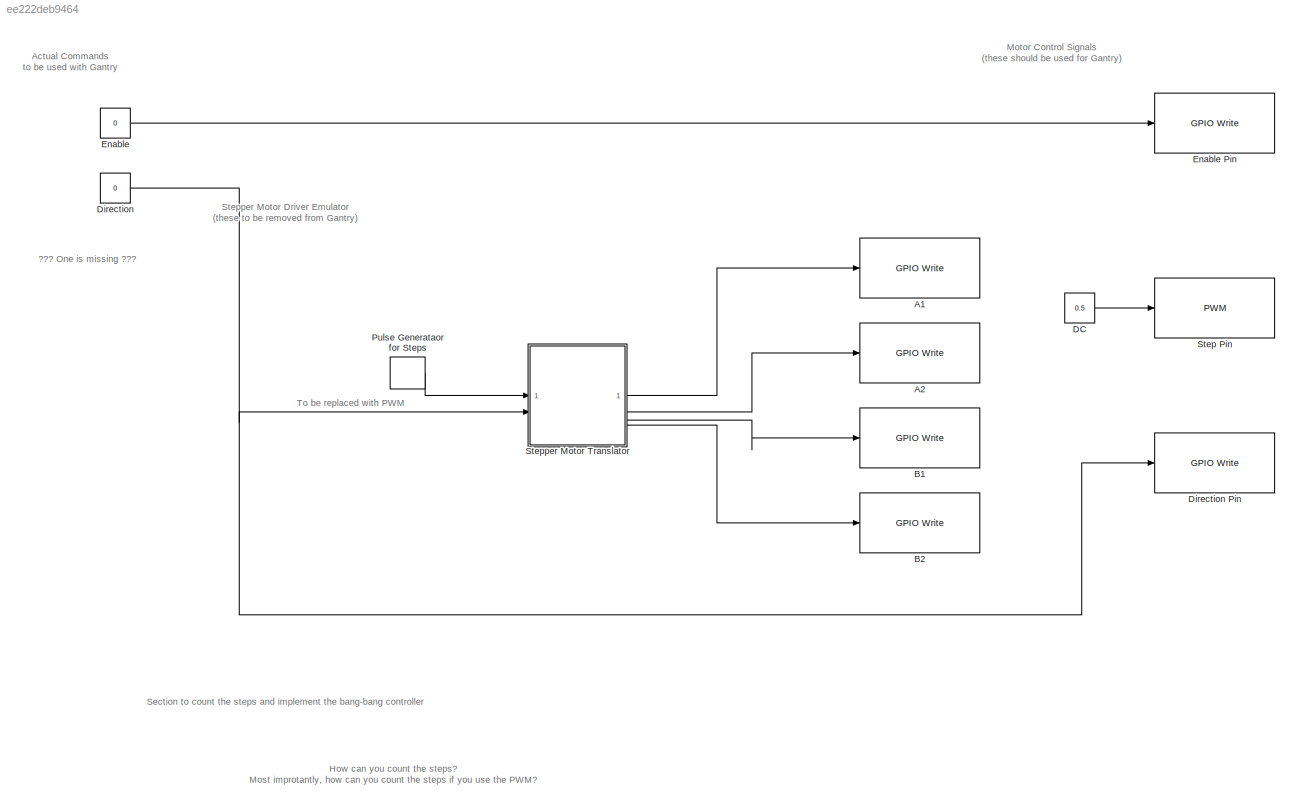
MODEL slx_ee222deb9464
KIND model
CONFIG AbsTol = auto
CONFIG EnableMultiTasking = on
CONFIG FixedStep = 0.05
CONFIG MaxStep = auto
CONFIG MinStep = auto
CONFIG RelTol = 1e-3
CONFIG SampleTimeConstraint = Unconstrained
CONFIG SolverName = FixedStepAuto
CONFIG StartTime = 0.0
CONFIG StopTime = inf
BLOCK [Reference] A1  REF=raspberrypiBasiclib/GPIO Write
  SourceBlock = raspberrypiBasiclib/GPIO Write
  SourceType = codertarget.raspi.internal.RaspiGPIOWrite
BLOCK [Reference] A2  REF=raspberrypiBasiclib/GPIO Write
  SourceBlock = raspberrypiBasiclib/GPIO Write
  SourceType = codertarget.raspi.internal.RaspiGPIOWrite
BLOCK [Reference] B1  REF=raspberrypiBasiclib/GPIO Write
  SourceBlock = raspberrypiBasiclib/GPIO Write
  SourceType = codertarget.raspi.internal.RaspiGPIOWrite
BLOCK [Reference] B2  REF=raspberrypiBasiclib/GPIO Write
  SourceBlock = raspberrypiBasiclib/GPIO Write
  SourceType = codertarget.raspi.internal.RaspiGPIOWrite
BLOCK [Constant] DC
  Commented = on
  SampleTime = -1
  Value = 0.5
BLOCK [Constant] Direction
  SampleTime = -1
  Value = 0
BLOCK [Reference] Direction Pin  REF=raspberrypiBasiclib/GPIO Write
  Commented = on
  SourceBlock = raspberrypiBasiclib/GPIO Write
  SourceType = codertarget.raspi.internal.RaspiGPIOWrite
BLOCK [Constant] Enable
  SampleTime = -1
  Value = 0
BLOCK [Reference] Enable Pin  REF=raspberrypiBasiclib/GPIO Write
  SourceBlock = raspberrypiBasiclib/GPIO Write
  SourceType = codertarget.raspi.internal.RaspiGPIOWrite
BLOCK [DiscretePulseGenerator] Pulse Generataor for Steps
  Period = 0.1
  PulseType = Time based
  PulseWidth = 50
BLOCK [Reference] Step Pin  REF=raspberrypiBasiclib/PWM
  Commented = on
  SourceBlock = raspberrypiBasiclib/PWM
  SourceType = raspi.internal.PWMBlock
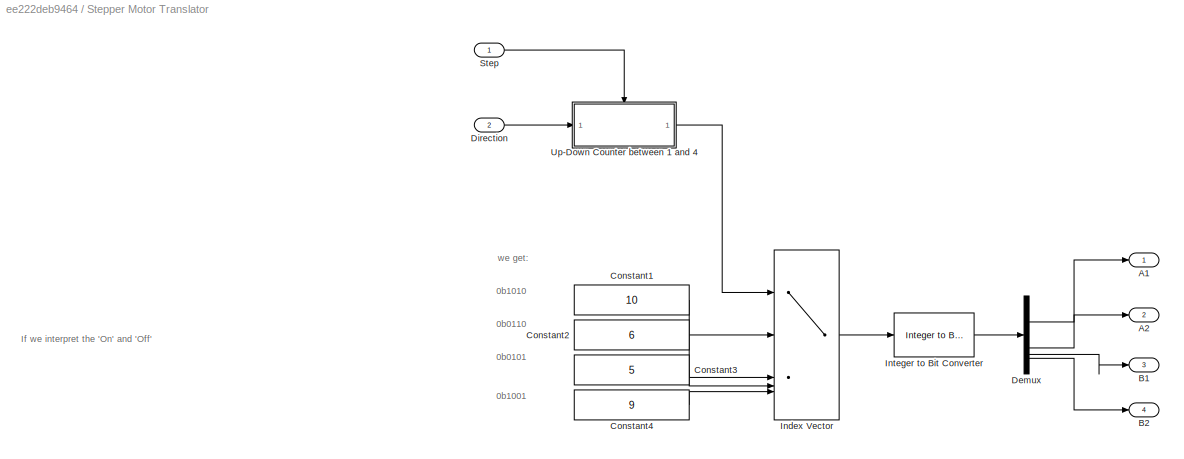
BLOCK [SubSystem] Stepper Motor Translator
BLOCK [Outport] Stepper Motor Translator/A1
BLOCK [Outport] Stepper Motor Translator/A2
  Port = 2
BLOCK [Outport] Stepper Motor Translator/B1
  Port = 3
BLOCK [Outport] Stepper Motor Translator/B2
  Port = 4
BLOCK [Constant] Stepper Motor Translator/Constant1
  OutDataTypeStr = uint8
  SampleTime = -1
  Value = 10
BLOCK [Constant] Stepper Motor Translator/Constant2
  OutDataTypeStr = uint8
  SampleTime = -1
  Value = 6
BLOCK [Constant] Stepper Motor Translator/Constant3
  OutDataTypeStr = uint8
  SampleTime = -1
  Value = 5
BLOCK [Constant] Stepper Motor Translator/Constant4
  OutDataTypeStr = uint8
  SampleTime = -1
  Value = 9
BLOCK [Demux] Stepper Motor Translator/Demux
BLOCK [Inport] Stepper Motor Translator/Direction
  Port = 2
BLOCK [MultiPortSwitch] Stepper Motor Translator/Index Vector
  InputSameDT = off
  Inputs = 4
  SaturateOnIntegerOverflow = off
BLOCK [Reference] Stepper Motor Translator/Integer to Bit Converter  REF=simulink/Logic and Bit
Operations/Integer to Bit
Converter
  SourceBlock = simulink/Logic and Bit\nOperations/Integer to Bit\nConverter
  SourceType = Integer to Bit Converter
BLOCK [Inport] Stepper Motor Translator/Step
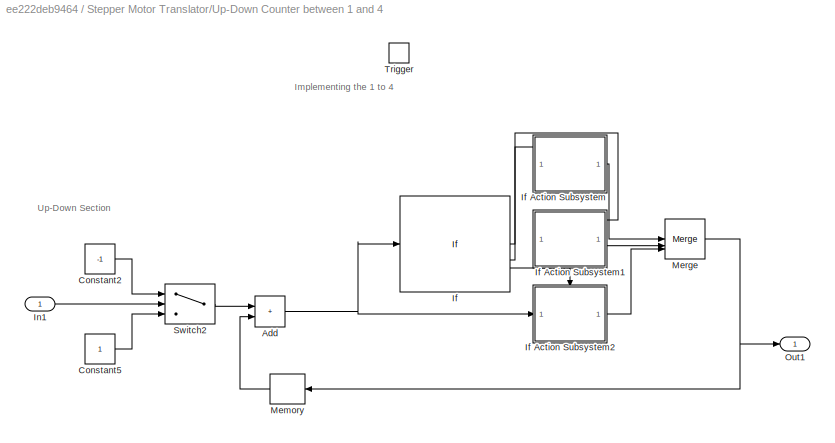
BLOCK [SubSystem] Stepper Motor Translator/Up-Down Counter between 1 and 4
  TreatAsAtomicUnit = on
BLOCK [Sum] Stepper Motor Translator/Up-Down Counter between 1 and 4/Add
  IconShape = rectangular
BLOCK [Constant] Stepper Motor Translator/Up-Down Counter between 1 and 4/Constant2
  SampleTime = -1
  Value = -1
BLOCK [Constant] Stepper Motor Translator/Up-Down Counter between 1 and 4/Constant5
  SampleTime = -1
BLOCK [If] Stepper Motor Translator/Up-Down Counter between 1 and 4/If
  ElseIfExpressions = u1<1
  IfExpression = u1 > 4
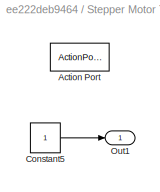
BLOCK [SubSystem] Stepper Motor Translator/Up-Down Counter between 1 and 4/If Action Subsystem
  TreatAsAtomicUnit = on
BLOCK [ActionPort] Stepper Motor Translator/Up-Down Counter between 1 and 4/If Action Subsystem/Action Port
  ActionPortLabel = if(u1 > 4)
BLOCK [Constant] Stepper Motor Translator/Up-Down Counter between 1 and 4/If Action Subsystem/Constant5
  SampleTime = -1
BLOCK [Outport] Stepper Motor Translator/Up-Down Counter between 1 and 4/If Action Subsystem/Out1
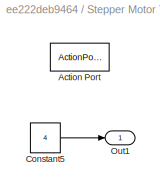
BLOCK [SubSystem] Stepper Motor Translator/Up-Down Counter between 1 and 4/If Action Subsystem1
  TreatAsAtomicUnit = on
BLOCK [ActionPort] Stepper Motor Translator/Up-Down Counter between 1 and 4/If Action Subsystem1/Action Port
  ActionPortLabel = elseif(u1<1)
BLOCK [Constant] Stepper Motor Translator/Up-Down Counter between 1 and 4/If Action Subsystem1/Constant5
  SampleTime = -1
  Value = 4
BLOCK [Outport] Stepper Motor Translator/Up-Down Counter between 1 and 4/If Action Subsystem1/Out1
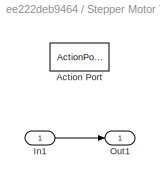
BLOCK [SubSystem] Stepper Motor Translator/Up-Down Counter between 1 and 4/If Action Subsystem2
  TreatAsAtomicUnit = on
BLOCK [ActionPort] Stepper Motor Translator/Up-Down Counter between 1 and 4/If Action Subsystem2/Action Port
  ActionPortLabel = else
BLOCK [Inport] Stepper Motor Translator/Up-Down Counter between 1 and 4/If Action Subsystem2/In1
BLOCK [Outport] Stepper Motor Translator/Up-Down Counter between 1 and 4/If Action Subsystem2/Out1
BLOCK [Inport] Stepper Motor Translator/Up-Down Counter between 1 and 4/In1
BLOCK [Memory] Stepper Motor Translator/Up-Down Counter between 1 and 4/Memory
  InheritSampleTime = on
  InitialCondition = 1
BLOCK [Merge] Stepper Motor Translator/Up-Down Counter between 1 and 4/Merge
  Inputs = 3
BLOCK [Outport] Stepper Motor Translator/Up-Down Counter between 1 and 4/Out1
  InitialOutput = 1
BLOCK [Switch] Stepper Motor Translator/Up-Down Counter between 1 and 4/Switch2
  Criteria = u2 > Threshold
  InputSameDT = off
  SaturateOnIntegerOverflow = off
BLOCK [TriggerPort] Stepper Motor Translator/Up-Down Counter between 1 and 4/Trigger
  PortDimensions = 1
  StatesWhenEnabling = held
  VariantControl = (inherit)
ANNOTATION (root): How can you count the steps? Most improtantly, how can you count the steps if you use the PWM?
ANNOTATION (root): ??? One is missing ???
ANNOTATION (root): Actual Commands to be used with Gantry
ANNOTATION (root): Motor Control Signals (these should be used for Gantry)
ANNOTATION (root): Section to count the steps and implement the bang-bang controller
ANNOTATION (root): Stepper Motor Driver Emulator (these to be removed from Gantry)
ANNOTATION (root): To be replaced with PWM
ANNOTATION Stepper Motor Translator: 0b0101
ANNOTATION Stepper Motor Translator: 0b0110
ANNOTATION Stepper Motor Translator: 0b1001
ANNOTATION Stepper Motor Translator: 0b1010
ANNOTATION Stepper Motor Translator: If we interpret the 'On' and 'Off'
ANNOTATION Stepper Motor Translator: we get:
ANNOTATION Stepper Motor Translator/Up-Down Counter between 1 and 4: Implementing the 1 to 4
ANNOTATION Stepper Motor Translator/Up-Down Counter between 1 and 4: Up-Down Section
LINE DC:1 -> Step Pin:1
NET Direction:1 -> Direction Pin:1, Stepper Motor Translator:2
LINE Enable:1 -> Enable Pin:1
LINE Pulse Generataor for Steps:1 -> Stepper Motor Translator:1
LINE Stepper Motor Translator/Constant1:1 -> Stepper Motor Translator/Index Vector:2
LINE Stepper Motor Translator/Constant2:1 -> Stepper Motor Translator/Index Vector:3
LINE Stepper Motor Translator/Constant3:1 -> Stepper Motor Translator/Index Vector:4
LINE Stepper Motor Translator/Constant4:1 -> Stepper Motor Translator/Index Vector:5
LINE Stepper Motor Translator/Demux:1 -> Stepper Motor Translator/A1:1
LINE Stepper Motor Translator/Demux:2 -> Stepper Motor Translator/A2:1
LINE Stepper Motor Translator/Demux:3 -> Stepper Motor Translator/B1:1
LINE Stepper Motor Translator/Demux:4 -> Stepper Motor Translator/B2:1
LINE Stepper Motor Translator/Direction:1 -> Stepper Motor Translator/Up-Down Counter between 1 and 4:1
LINE Stepper Motor Translator/Index Vector:1 -> Stepper Motor Translator/Integer to Bit Converter:1
LINE Stepper Motor Translator/Integer to Bit Converter:1 -> Stepper Motor Translator/Demux:1
LINE Stepper Motor Translator/Step:1 -> Stepper Motor Translator/Up-Down Counter between 1 and 4:trigger
NET Stepper Motor Translator/Up-Down Counter between 1 and 4/Add:1 -> Stepper Motor Translator/Up-Down Counter between 1 and 4/If Action Subsystem2:1, Stepper Motor Translator/Up-Down Counter between 1 and 4/If:1
LINE Stepper Motor Translator/Up-Down Counter between 1 and 4/Constant2:1 -> Stepper Motor Translator/Up-Down Counter between 1 and 4/Switch2:1
LINE Stepper Motor Translator/Up-Down Counter between 1 and 4/Constant5:1 -> Stepper Motor Translator/Up-Down Counter between 1 and 4/Switch2:3
LINE Stepper Motor Translator/Up-Down Counter between 1 and 4/If Action Subsystem/Constant5:1 -> Stepper Motor Translator/Up-Down Counter between 1 and 4/If Action Subsystem/Out1:1
LINE Stepper Motor Translator/Up-Down Counter between 1 and 4/If Action Subsystem1/Constant5:1 -> Stepper Motor Translator/Up-Down Counter between 1 and 4/If Action Subsystem1/Out1:1
LINE Stepper Motor Translator/Up-Down Counter between 1 and 4/If Action Subsystem1:1 -> Stepper Motor Translator/Up-Down Counter between 1 and 4/Merge:2
LINE Stepper Motor Translator/Up-Down Counter between 1 and 4/If Action Subsystem2/In1:1 -> Stepper Motor Translator/Up-Down Counter between 1 and 4/If Action Subsystem2/Out1:1
LINE Stepper Motor Translator/Up-Down Counter between 1 and 4/If Action Subsystem2:1 -> Stepper Motor Translator/Up-Down Counter between 1 and 4/Merge:3
LINE Stepper Motor Translator/Up-Down Counter between 1 and 4/If Action Subsystem:1 -> Stepper Motor Translator/Up-Down Counter between 1 and 4/Merge:1
LINE Stepper Motor Translator/Up-Down Counter between 1 and 4/If:1 -> Stepper Motor Translator/Up-Down Counter between 1 and 4/If Action Subsystem:ifaction
LINE Stepper Motor Translator/Up-Down Counter between 1 and 4/If:2 -> Stepper Motor Translator/Up-Down Counter between 1 and 4/If Action Subsystem1:ifaction
LINE Stepper Motor Translator/Up-Down Counter between 1 and 4/If:3 -> Stepper Motor Translator/Up-Down Counter between 1 and 4/If Action Subsystem2:ifaction
LINE Stepper Motor Translator/Up-Down Counter between 1 and 4/In1:1 -> Stepper Motor Translator/Up-Down Counter between 1 and 4/Switch2:2
LINE Stepper Motor Translator/Up-Down Counter between 1 and 4/Memory:1 -> Stepper Motor Translator/Up-Down Counter between 1 and 4/Add:2
NET Stepper Motor Translator/Up-Down Counter between 1 and 4/Merge:1 -> Stepper Motor Translator/Up-Down Counter between 1 and 4/Memory:1, Stepper Motor Translator/Up-Down Counter between 1 and 4/Out1:1
LINE Stepper Motor Translator/Up-Down Counter between 1 and 4/Switch2:1 -> Stepper Motor Translator/Up-Down Counter between 1 and 4/Add:1
LINE Stepper Motor Translator/Up-Down Counter between 1 and 4:1 -> Stepper Motor Translator/Index Vector:1
LINE Stepper Motor Translator:1 -> A1:1
LINE Stepper Motor Translator:2 -> A2:1
LINE Stepper Motor Translator:3 -> B1:1
LINE Stepper Motor Translator:4 -> B2:1
note: NET lines group one-source signal fan-out (src -> all destinations, sorted); 1:1 wires keep LINE
